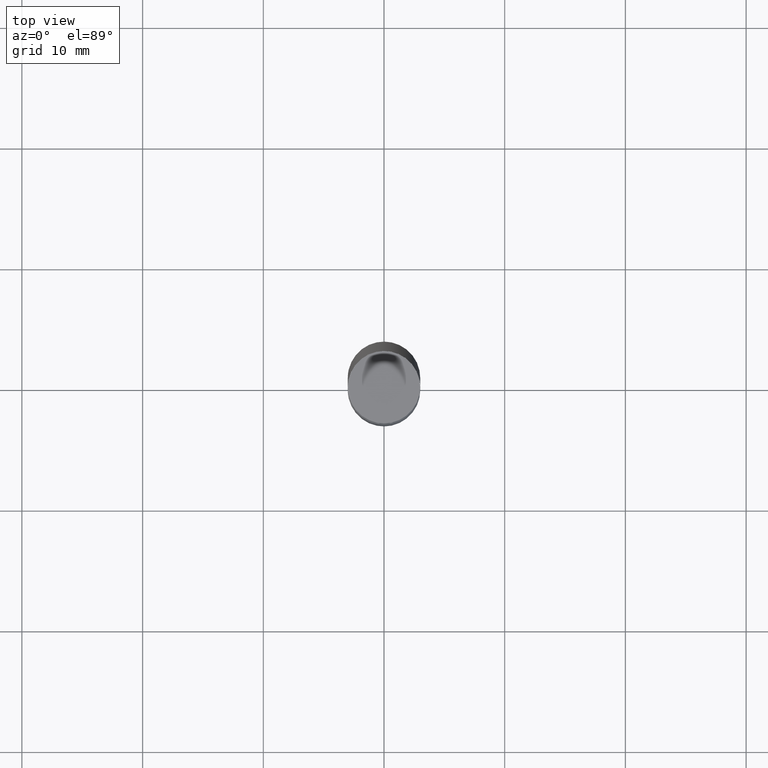
[diagram: clean part render]
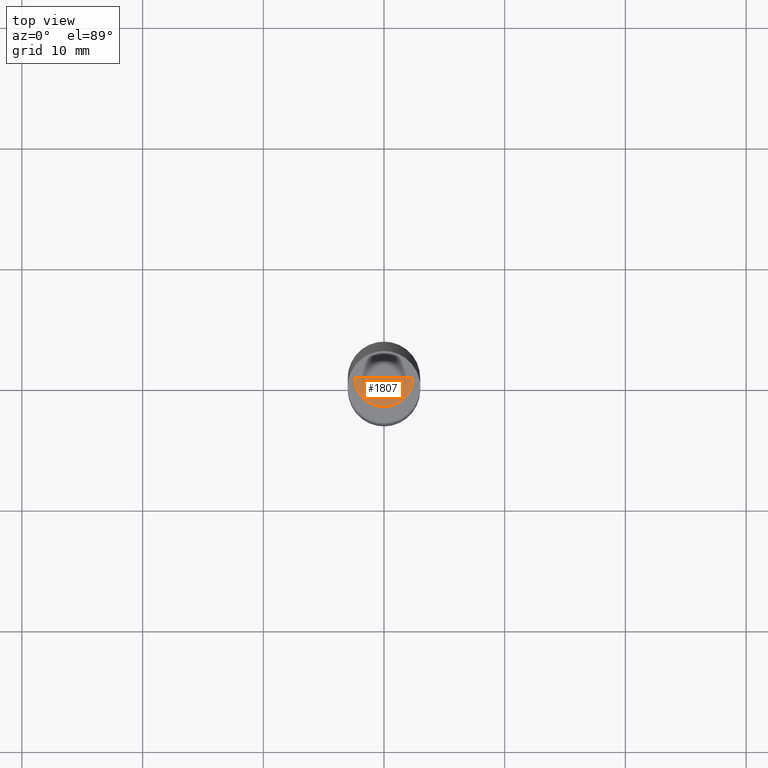
[diagram: same view with one face highlighted and labeled with its STEP entity id]
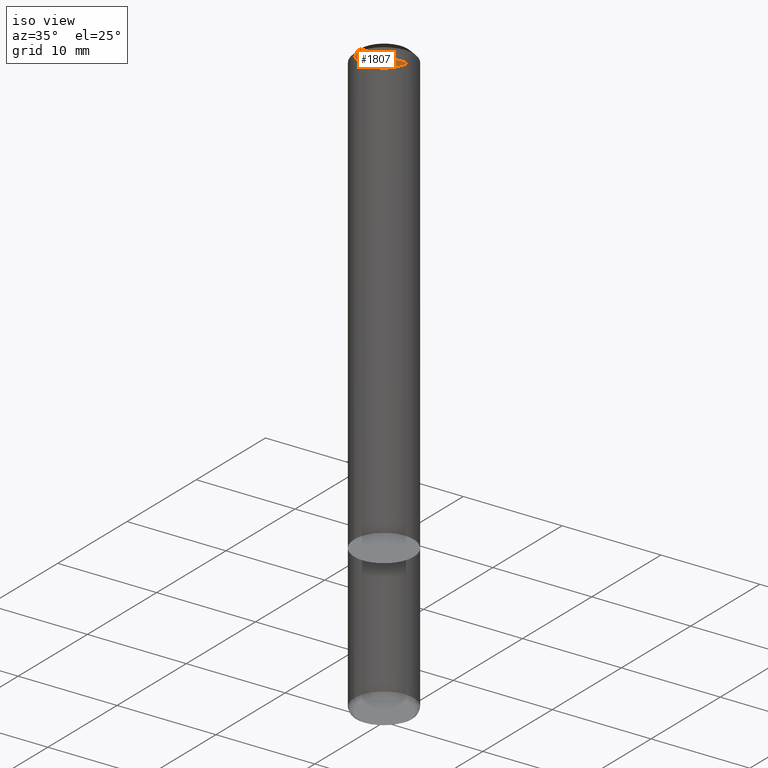
[diagram: same view with one face highlighted and labeled with its STEP entity id]
A machine part, top view. The second image highlights one B-rep face of the part: STEP entity #1807.
A second angle (iso view) of the same face is appended — the face is thin or edge-on in the first view.
In plain terms, the highlighted face is a freeform B-spline surface patch.
Its self-contained STEP definition (entity closure, byte-faithful):
#1495=CARTESIAN_POINT('',(2.4,0.0,45.0));
#1499=CARTESIAN_POINT('',(-2.4,0.0,45.0));
#1500=CARTESIAN_POINT('',(0.0,0.0,45.0));
#1504=CARTESIAN_POINT('',(-2.4,-2.4,45.0));
#1505=CARTESIAN_POINT('',(0.0,-2.4,45.0));
#1506=CARTESIAN_POINT('',(2.4,-2.4,45.0));
#1792=(
BOUNDED_SURFACE()
B_SPLINE_SURFACE(1,2,(
(#1499,#1504,#1505,#1506,#1495),
(#1500,#1500,#1500,#1500,#1500)
), .UNSPECIFIED.,.F.,.F.,.F.)
B_SPLINE_SURFACE_WITH_KNOTS((2,2),(3,2,3),(
0.0,1.0),(
0.0,0.5,1.0), .UNSPECIFIED.)
GEOMETRIC_REPRESENTATION_ITEM()
RATIONAL_B_SPLINE_SURFACE(((1.0,0.707106781187,1.0,0.707106781187,1.0),
(1.0,0.707106781187,1.0,0.707106781187,1.0)
))
REPRESENTATION_ITEM('')
SURFACE()
);
#1793=(
BOUNDED_CURVE()
B_SPLINE_CURVE(1,(#1500,#1495),.UNSPECIFIED.,.F.,.F.)
B_SPLINE_CURVE_WITH_KNOTS((2,2),
(0.0,1.0),.UNSPECIFIED.)
CURVE()
GEOMETRIC_REPRESENTATION_ITEM()
RATIONAL_B_SPLINE_CURVE((1.0,1.0))
REPRESENTATION_ITEM('')
);
#1794=(
BOUNDED_CURVE()
B_SPLINE_CURVE(2,(#1495,#1506,#1505,#1504,#1499),.UNSPECIFIED.,.F.,.F.)
B_SPLINE_CURVE_WITH_KNOTS((3,2,3),
(0.0,0.5,1.0),.UNSPECIFIED.)
CURVE()
GEOMETRIC_REPRESENTATION_ITEM()
RATIONAL_B_SPLINE_CURVE((1.0,0.707106781187,1.0,0.707106781187,1.0))
REPRESENTATION_ITEM('')
);
#1795=(
BOUNDED_CURVE()
B_SPLINE_CURVE(1,(#1499,#1500),.UNSPECIFIED.,.F.,.F.)
B_SPLINE_CURVE_WITH_KNOTS((2,2),
(0.0,1.0),.UNSPECIFIED.)
CURVE()
GEOMETRIC_REPRESENTATION_ITEM()
RATIONAL_B_SPLINE_CURVE((1.0,1.0))
REPRESENTATION_ITEM('')
);
#1796=VERTEX_POINT('',#1495);
#1797=VERTEX_POINT('',#1499);
#1798=VERTEX_POINT('',#1500);
#1799=EDGE_CURVE('',#1798,#1796,#1793,.T.);
#1800=EDGE_CURVE('',#1796,#1797,#1794,.T.);
#1801=EDGE_CURVE('',#1797,#1798,#1795,.T.);
#1802=ORIENTED_EDGE('',*,*,#1799,.T.);
#1803=ORIENTED_EDGE('',*,*,#1800,.T.);
#1804=ORIENTED_EDGE('',*,*,#1801,.T.);
#1805=EDGE_LOOP('',(#1802,#1803,#1804));
#1806=FACE_OUTER_BOUND('',#1805,.T.);
#1807=ADVANCED_FACE('',(#1806),#1792,.T.);